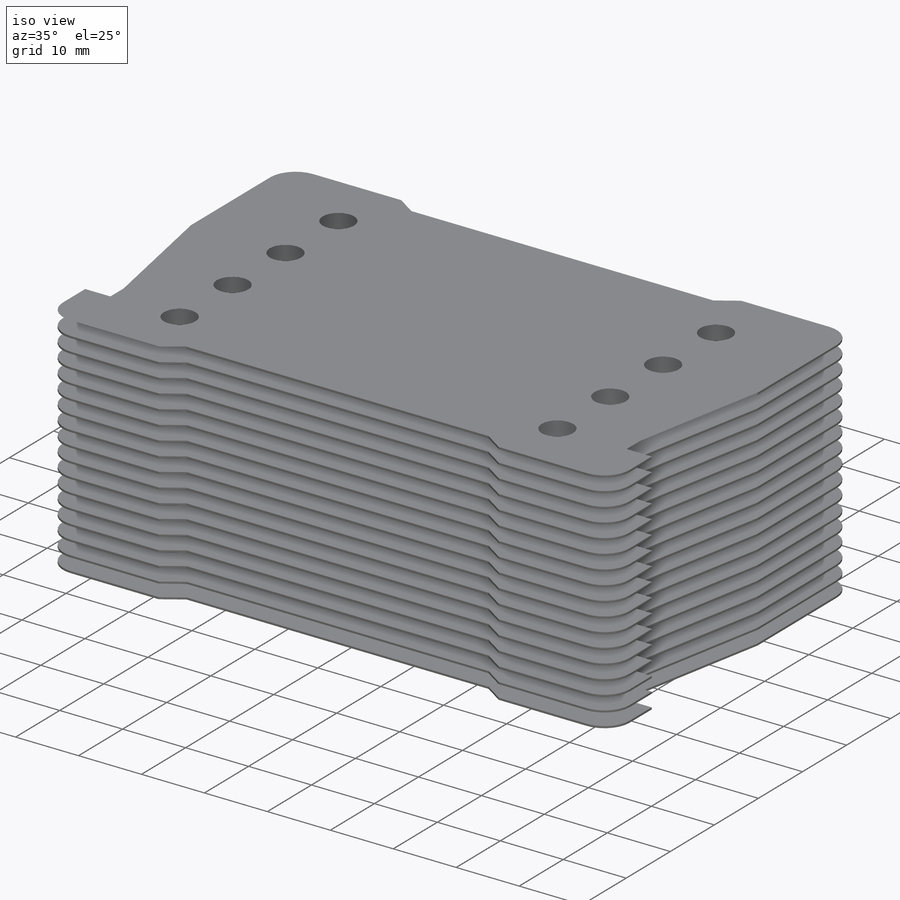
[diagram: iso view]
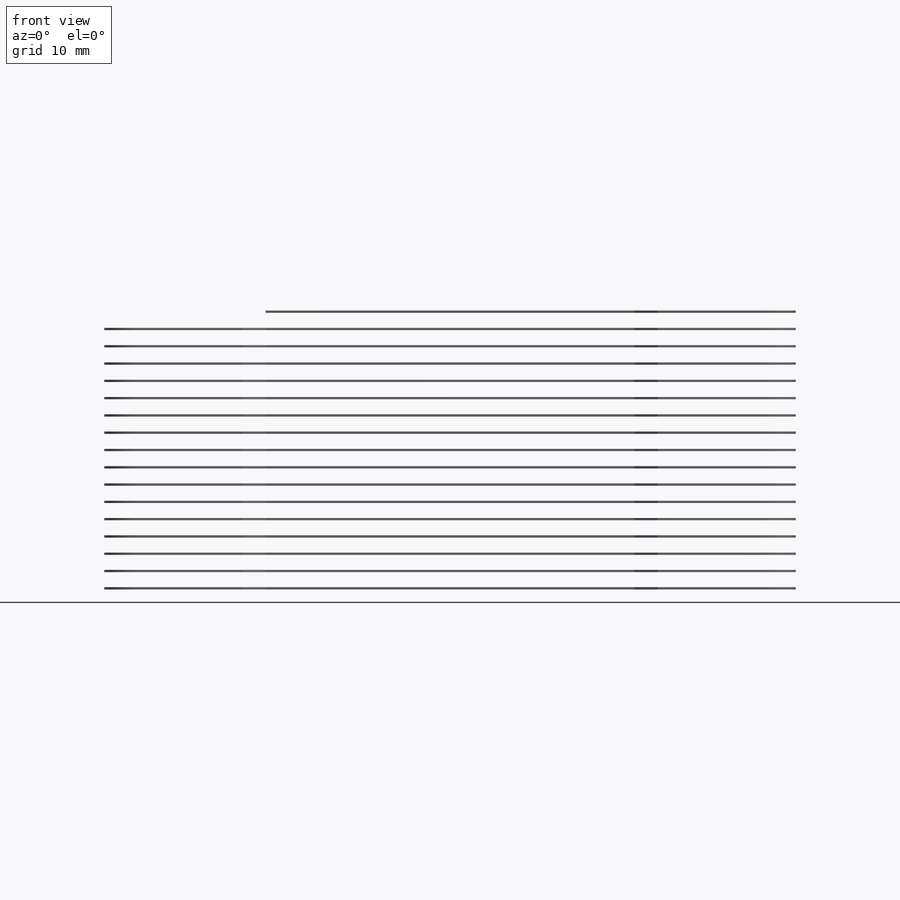
[diagram: front view]
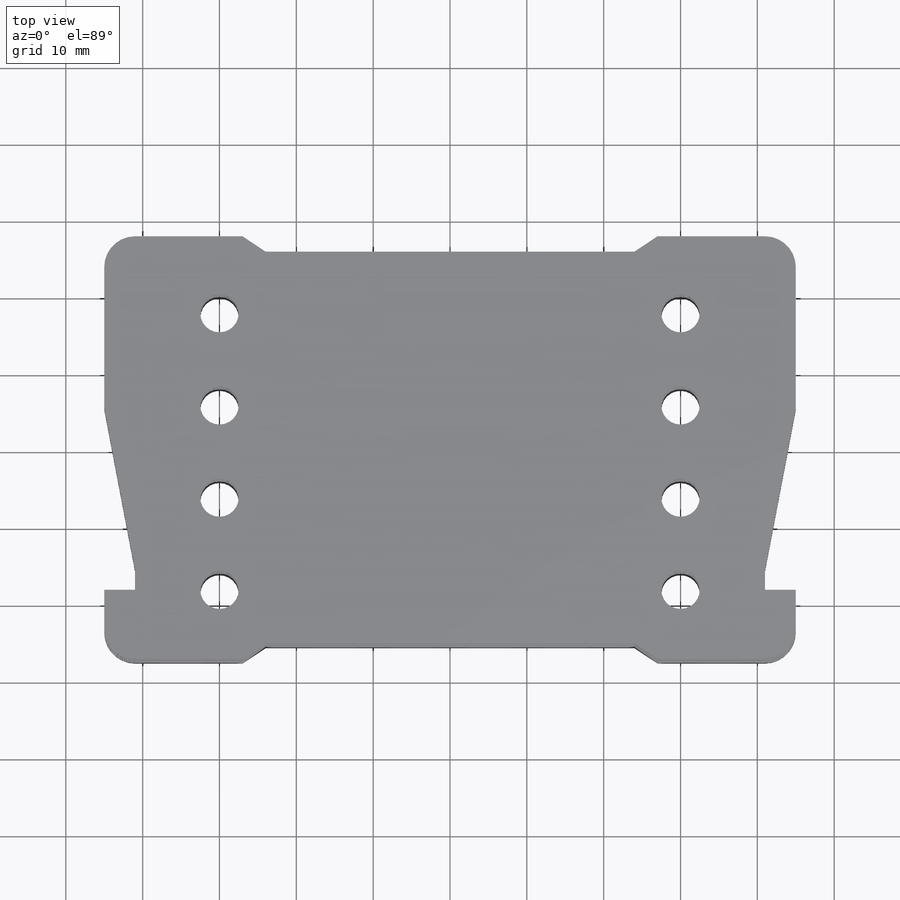
[diagram: top view]
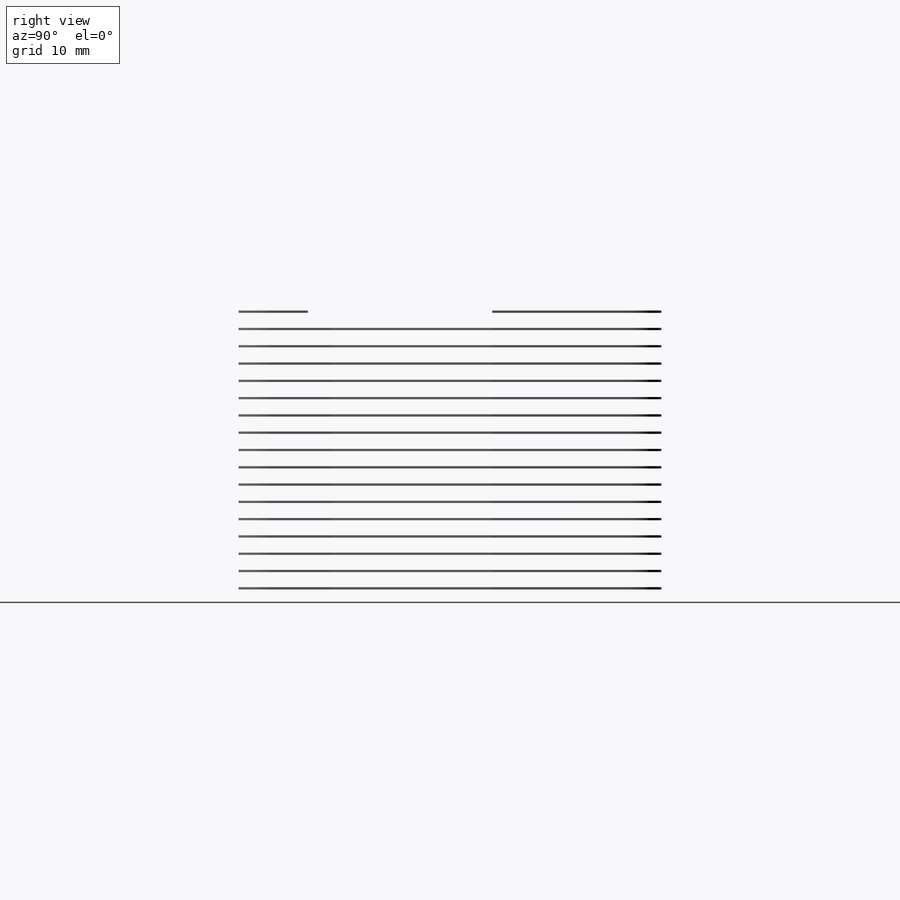
[diagram: right view]
SOLIDWORKS PART (.sldprt)
format: sldprt  version: not decoded by parser v0  size: 2,101,760 bytes
history: native  units: mm
features: sketch x3, plane x3, material x1, extrude x1, pattern_linear x1, cut_extrude x1 (+13 scaffold rows collapsed)
feature tree (23):
  scaffold x13  (default folders/planes/origin — collapsed)
  material  "Material <not specified>"
  sketch  "Sketch1"  dims[c1.D2=4.0mm c1.D3=~2.703646mm c1.D5=1.0mm c1.D1=55.0mm c2.D3=10.0mm c2.D5=20.0mm c2.D6=22.0mm c2.D7=4.0mm c2.D4=4.0]
  extrude  "Boss-Extrude1"  Depth=0.3mm
  sketch  "Sketch2"  dims[D1=90.0mm]
  pattern_linear  "LPattern2"  Count1=40 Count2=1 Spacing1=2.25mm Spacing2=50mm
  plane  "Plane1"  Offset=0mm
  plane  "Plane2"  Offset=0mm
  plane  "Plane3"
  sketch  "Sketch3"  dims[D1=3.0mm]
  cut_extrude  "Cut-Extrude1"  [1 undecoded]
decode coverage: 5 of 6 modeling features carry decoded parameters
note: ~ marks probable driven/reference dimensions
note: 1 parameter value undecoded
note: suppression state not decoded; provenance and decode notes live in map.json
